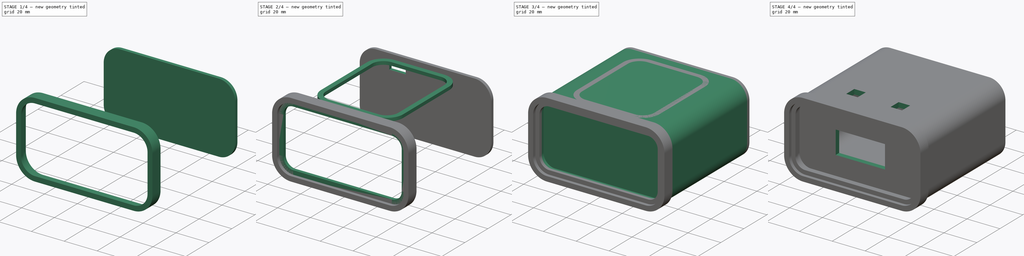
[diagram: build sequence overview — one tinted view per stage of 4, left to right]
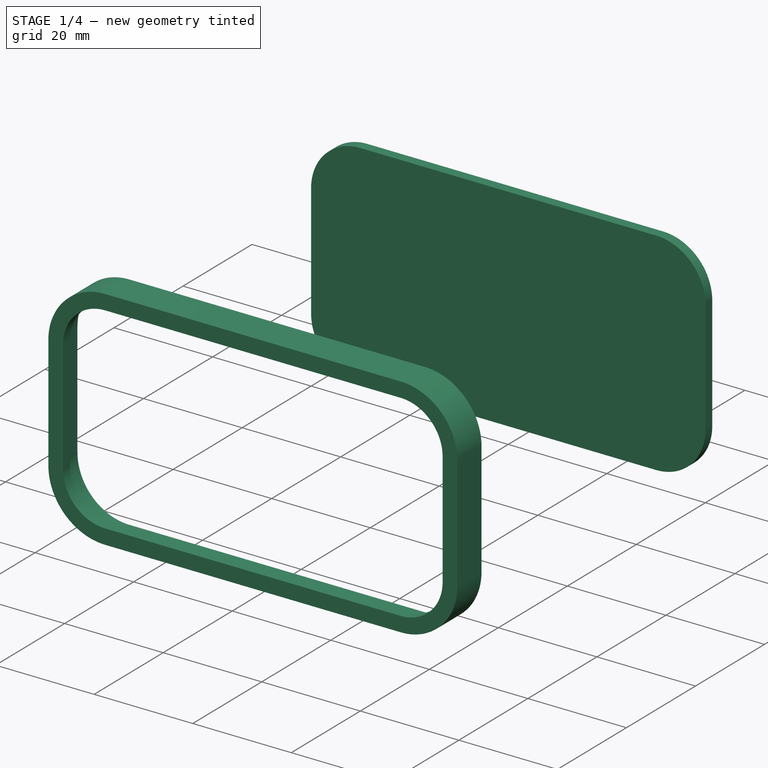
[diagram: stage 1 of 4 — iso view after this stage's code; geometry added in this stage tinted green]
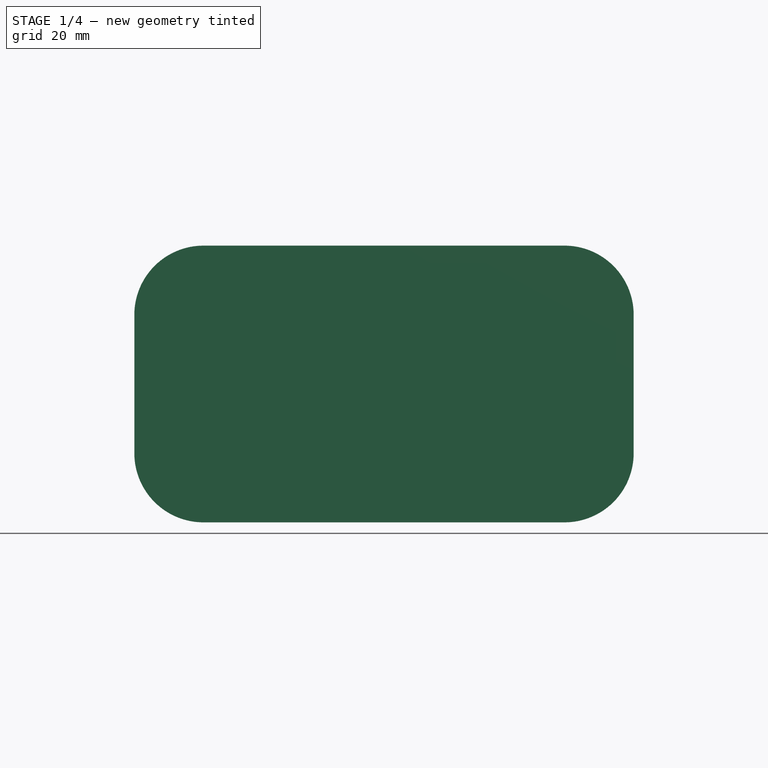
[diagram: stage 1 of 4 — front view after this stage's code; geometry added in this stage tinted green]
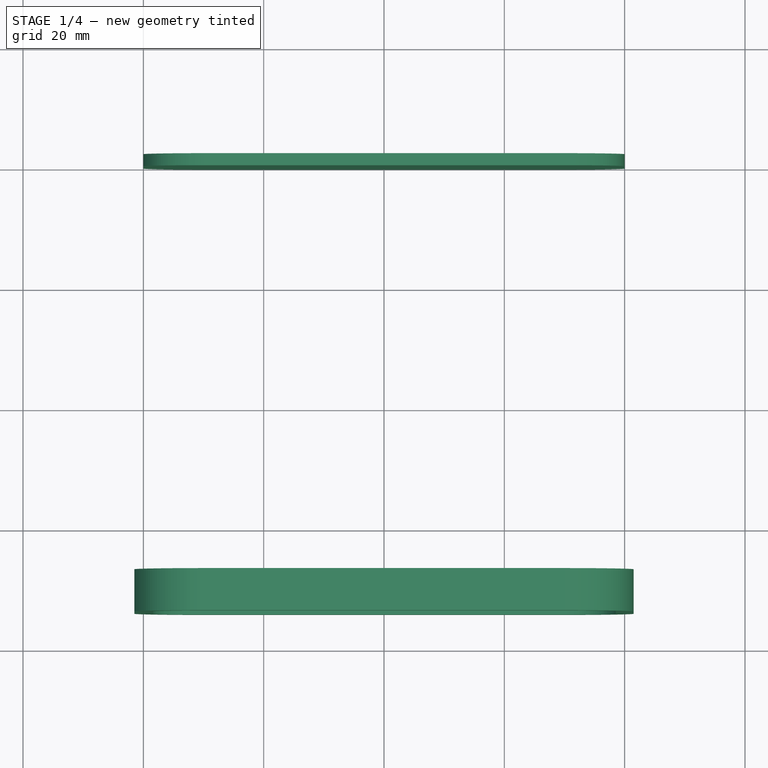
[diagram: stage 1 of 4 — top view after this stage's code; geometry added in this stage tinted green]
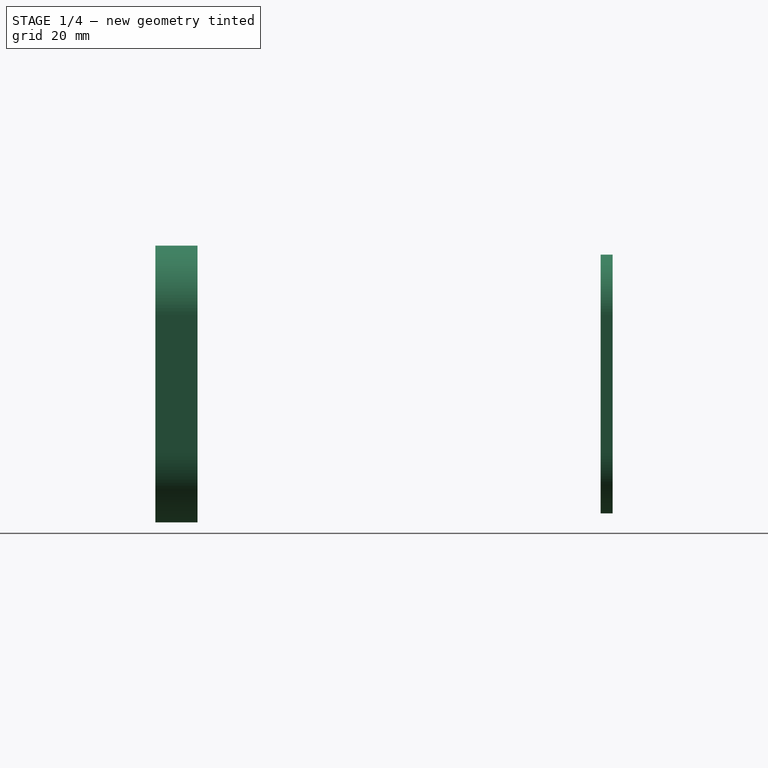
[diagram: stage 1 of 4 — right view after this stage's code; geometry added in this stage tinted green]
FCSTD DOCUMENT  (FreeCAD 0.19R24276 (Git))
Label: bsclock
License: All rights reserved
LicenseURL: http://en.wikipedia.org/wiki/All_rights_reserved
objects: Sketcher::SketchObject×12, PartDesign::Pad×6, PartDesign::Pocket×6, PartDesign::Body×5, PartDesign::ShapeBinder×4
note: 45 computed .brp shape members not serialized (recipe doc carries the construction recipe); baked Part::Feature solids carry a one-line shape summary decoded from their .brp

FEATURE [PartDesign::Body] Body003  label="TopRail"
  Group = -> [CopyPocket004001,Sketch007,Pad002]
  Origin = -> Origin003
  Tip = -> Pad002
FEATURE [PartDesign::ShapeBinder] CopyPocket004002
  Placement = pos=(0,0,0) rot=(1,0,0;1.5708rad)
  TraceSupport = false
FEATURE [Sketcher::SketchObject] Sketch008
  ExternalGeometry = -> [CopyPocket004002]
  FullyConstrained = true
  MapMode = 5
  Placement = pos=(0,0,0) rot=(-1,0,0;1.5708rad)
  Support = -> [CopyPocket004002]
  sketch-geometry (12):
    g0: LineSegment StartX=-30 StartY=21.5 StartZ=0 EndX=30 EndY=21.5 EndZ=0
    g1: LineSegment StartX=40 StartY=11.5 StartZ=0 EndX=40 EndY=-11.5 EndZ=0
    g2: LineSegment StartX=30 StartY=-21.5 StartZ=0 EndX=-30 EndY=-21.5 EndZ=0
    g3: LineSegment StartX=-40 StartY=-11.5 StartZ=0 EndX=-40 EndY=11.5 EndZ=0
    g4: ArcOfCircle CenterX=30 CenterY=11.5 CenterZ=0 NormalX=0 NormalY=0 NormalZ=1 AngleXU=0 Radius=10 StartAngle=0 EndAngle=1.5708
    g5: GeomPoint X=40 Y=21.5 Z=0
    g6: ArcOfCircle CenterX=30 CenterY=-11.5 CenterZ=0 NormalX=0 NormalY=0 NormalZ=1 AngleXU=0 Radius=10 StartAngle=4.71239 EndAngle=6.28319
    g7: GeomPoint X=40 Y=-21.5 Z=0
    g8: ArcOfCircle CenterX=-30 CenterY=-11.5 CenterZ=0 NormalX=0 NormalY=0 NormalZ=1 AngleXU=0 Radius=10 StartAngle=3.14159 EndAngle=4.71239
    g9: GeomPoint X=-40 Y=-21.5 Z=0
    g10: ArcOfCircle CenterX=-30 CenterY=11.5 CenterZ=0 NormalX=0 NormalY=0 NormalZ=1 AngleXU=0 Radius=10 StartAngle=1.5708 EndAngle=3.14159
    g11: GeomPoint X=-40 Y=21.5 Z=0
  constraints (28):
    c: Horizontal(g0)
    c: Horizontal(g2)
    c: Vertical(g1)
    c: Vertical(g3)
    c: DistanceY(g-3,g5) = 0
    c: DistanceY(g7,g-4) = 0
    c: DistanceX(g11,g-6) = 0
    c: DistanceX(g-5,g5) = 0
    c: PointOnObject(g5,g0)
    c: PointOnObject(g5,g1)
    c: Tangent(g0,g4) = 1.5708
    c: Tangent(g1,g4) = 1.5708
    c: PointOnObject(g7,g2)
    c: PointOnObject(g7,g1)
    c: Tangent(g2,g6) = 1.5708
    c: Tangent(g1,g6) = 1.5708
    c: PointOnObject(g9,g2)
    c: PointOnObject(g9,g3)
    c: Tangent(g2,g8) = 1.5708
    c: Tangent(g3,g8) = 1.5708
    c: PointOnObject(g11,g3)
    c: PointOnObject(g11,g0)
    c: Tangent(g3,g10) = 1.5708
    c: Tangent(g0,g10) = 1.5708
    c: DistanceX(g3,g10) = 10
    c: DistanceX(g4,g1) = 10
    c: DistanceX(g6,g1) = 10
    c: DistanceX(g3,g8) = 10
FEATURE [PartDesign::Pad] Pad003
  Direction = (1,1,1)
  Length = 2
  Length2 = 100
  Placement = pos=(0,0,0) rot=(1,0,0;1.5708rad)
  Profile = -> Sketch008
  Type = 0
FEATURE [PartDesign::Body] Body004  label="BackPlate"
  Group = -> [CopyPocket004002,Sketch008,Pad003,Sketch011,Pocket005]
  Origin = -> Origin004
  Tip = -> Pocket005
FEATURE [PartDesign::ShapeBinder] CopyPad005
  Placement = pos=(0,-2,1.1e-15) rot=(0,0,1;0rad)
  TraceSupport = false
FEATURE [Sketcher::SketchObject] Sketch012
  ExternalGeometry = -> [CopyPad005]
  FullyConstrained = true
  MapMode = 5
  Placement = pos=(0,-72,5.22e-14) rot=(1,0,0;1.5708rad)
  Support = -> [CopyPad005]
  sketch-geometry (24):
    g0: LineSegment StartX=-30 StartY=22 StartZ=0 EndX=30 EndY=22 EndZ=0
    g1: LineSegment StartX=40.5 StartY=11.5 StartZ=0 EndX=40.5 EndY=-11.5 EndZ=0
    g2: LineSegment StartX=30 StartY=-22 StartZ=0 EndX=-30 EndY=-22 EndZ=0
    g3: LineSegment StartX=-40.5 StartY=-11.5 StartZ=0 EndX=-40.5 EndY=11.5 EndZ=0
    g4: ArcOfCircle CenterX=30 CenterY=11.5 CenterZ=0 NormalX=0 NormalY=0 NormalZ=1 AngleXU=0 Radius=10.5 StartAngle=0 EndAngle=1.5708
    g5: GeomPoint X=40.5 Y=22 Z=0
    g6: ArcOfCircle CenterX=30 CenterY=-11.5 CenterZ=0 NormalX=0 NormalY=0 NormalZ=1 AngleXU=0 Radius=10.5 StartAngle=4.71239 EndAngle=6.28319
    g7: GeomPoint X=40.5 Y=-22 Z=0
    g8: ArcOfCircle CenterX=-30 CenterY=-11.5 CenterZ=0 NormalX=0 NormalY=0 NormalZ=1 AngleXU=0 Radius=10.5 StartAngle=3.14159 EndAngle=4.71239
    g9: GeomPoint X=-40.5 Y=-22 Z=0
    g10: ArcOfCircle CenterX=-30 CenterY=11.5 CenterZ=0 NormalX=0 NormalY=0 NormalZ=1 AngleXU=0 Radius=10.5 StartAngle=1.5708 EndAngle=3.14159
    g11: GeomPoint X=-40.5 Y=22 Z=0
    g12: LineSegment StartX=-30 StartY=23 StartZ=0 EndX=30 EndY=23 EndZ=0
    g13: LineSegment StartX=41.5 StartY=11.5 StartZ=0 EndX=41.5 EndY=-11.5 EndZ=0
    g14: LineSegment StartX=30 StartY=-23 StartZ=0 EndX=-30 EndY=-23 EndZ=0
    g15: LineSegment StartX=-41.5 StartY=-11.5 StartZ=0 EndX=-41.5 EndY=11.5 EndZ=0
    g16: ArcOfCircle CenterX=30 CenterY=11.5 CenterZ=0 NormalX=0 NormalY=0 NormalZ=1 AngleXU=0 Radius=11.5 StartAngle=0 EndAngle=1.5708
    g17: GeomPoint X=41.5 Y=23 Z=0
    g18: ArcOfCircle CenterX=-30 CenterY=11.5 CenterZ=0 NormalX=0 NormalY=0 NormalZ=1 AngleXU=0 Radius=11.5 StartAngle=1.5708 EndAngle=3.14159
    g19: GeomPoint X=-41.5 Y=23 Z=0
    g20: ArcOfCircle CenterX=-30 CenterY=-11.5 CenterZ=0 NormalX=0 NormalY=0 NormalZ=1 AngleXU=0 Radius=11.5 StartAngle=3.14159 EndAngle=4.71239
    g21: GeomPoint X=-41.5 Y=-23 Z=0
    g22: ArcOfCircle CenterX=30 CenterY=-11.5 CenterZ=0 NormalX=0 NormalY=0 NormalZ=1 AngleXU=0 Radius=11.5 StartAngle=4.71239 EndAngle=6.28319
    g23: GeomPoint X=41.5 Y=-23 Z=0
  constraints (56):
    c: Horizontal(g0)
    c: Horizontal(g2)
    c: Vertical(g1)
    c: Vertical(g3)
    c: DistanceX(g-5,g5) = 0.5
    c: DistanceX(g11,g-6) = 0.5
    c: DistanceY(g9,g-4) = 0.5
    c: DistanceY(g-3,g5) = 0.5
    c: PointOnObject(g5,g1)
    c: PointOnObject(g5,g0)
    c: Tangent(g1,g4) = 1.5708
    c: Tangent(g0,g4) = 1.5708
    c: PointOnObject(g7,g1)
    c: PointOnObject(g7,g2)
    c: Tangent(g1,g6) = 1.5708
    c: Tangent(g2,g6) = 1.5708
    c: PointOnObject(g9,g2)
    c: PointOnObject(g9,g3)
    c: Tangent(g2,g8) = 1.5708
    c: Tangent(g3,g8) = 1.5708
    c: PointOnObject(g11,g3)
    c: PointOnObject(g11,g0)
    c: Tangent(g3,g10) = 1.5708
    c: Tangent(g0,g10) = 1.5708
    c: DistanceX(g3,g10) = 10.5
    c: DistanceX(g4,g1) = 10.5
    c: DistanceX(g6,g1) = 10.5
    c: DistanceX(g3,g8) = 10.5
    c: Horizontal(g12)
    c: Horizontal(g14)
    c: Vertical(g13)
    c: Vertical(g15)
    c: DistanceX(g1,g17) = 1
    c: DistanceY(g23,g2) = 1
    c: DistanceX(g21,g3) = 1
    c: DistanceY(g0,g19) = 1
    c: PointOnObject(g17,g12)
    c: PointOnObject(g17,g13)
    c: Tangent(g12,g16) = 1.5708
    c: Tangent(g13,g16) = 1.5708
    c: PointOnObject(g19,g15)
    c: PointOnObject(g19,g12)
    c: Tangent(g15,g18) = 1.5708
    c: Tangent(g12,g18) = 1.5708
    c: PointOnObject(g21,g14)
    c: PointOnObject(g21,g15)
    c: Tangent(g14,g20) = 1.5708
    c: Tangent(g15,g20) = 1.5708
    c: PointOnObject(g23,g14)
    c: PointOnObject(g23,g13)
    c: Tangent(g14,g22) = 1.5708
    c: Tangent(g13,g22) = 1.5708
    c: DistanceX(g22,g13) = 11.5
    c: DistanceX(g16,g13) = 11.5
    c: DistanceX(g15,g18) = 11.5
    c: DistanceX(g15,g20) = 11.5
FEATURE [PartDesign::Pad] Pad006  label="Rim"
  Direction = (1,1,1)
  Length = 5
  Length2 = 100
  Placement = pos=(0,-2,1.1e-15) rot=(0,0,1;0rad)
  Profile = -> Sketch012
  Reversed = true
  Type = 0
FEATURE [Sketcher::SketchObject] Sketch013
  ExternalGeometry = -> [Pad006]
  FullyConstrained = true
  MapMode = 5
  Placement = pos=(0,-72,5.7e-14) rot=(1,0,0;1.5708rad)
  Support = -> [Pad006]
  sketch-geometry (24):
    g0: LineSegment StartX=-30 StartY=23 StartZ=0 EndX=30 EndY=23 EndZ=0
    g1: LineSegment StartX=41.5 StartY=11.5 StartZ=0 EndX=41.5 EndY=-11.5 EndZ=0
    g2: LineSegment StartX=30 StartY=-23 StartZ=0 EndX=-30 EndY=-23 EndZ=0
    g3: LineSegment StartX=-41.5 StartY=-11.5 StartZ=0 EndX=-41.5 EndY=11.5 EndZ=0
    g4: ArcOfCircle CenterX=30 CenterY=-11.5 CenterZ=0 NormalX=0 NormalY=0 NormalZ=1 AngleXU=0 Radius=11.5 StartAngle=4.71239 EndAngle=6.28319
    g5: GeomPoint X=41.5 Y=-23 Z=0
    g6: ArcOfCircle CenterX=30 CenterY=11.5 CenterZ=0 NormalX=0 NormalY=0 NormalZ=1 AngleXU=0 Radius=11.5 StartAngle=0 EndAngle=1.5708
    g7: GeomPoint X=41.5 Y=23 Z=0
    g8: ArcOfCircle CenterX=-30 CenterY=11.5 CenterZ=0 NormalX=0 NormalY=0 NormalZ=1 AngleXU=0 Radius=11.5 StartAngle=1.5708 EndAngle=3.14159
    g9: GeomPoint X=-41.5 Y=23 Z=0
    g10: ArcOfCircle CenterX=-30 CenterY=-11.5 CenterZ=0 NormalX=0 NormalY=0 NormalZ=1 AngleXU=0 Radius=11.5 StartAngle=3.14159 EndAngle=4.71239
    g11: GeomPoint X=-41.5 Y=-23 Z=0
    g12: LineSegment StartX=-30 StartY=20 StartZ=0 EndX=30 EndY=20 EndZ=0
    g13: LineSegment StartX=38.5 StartY=11.5 StartZ=0 EndX=38.5 EndY=-11.5 EndZ=0
    g14: LineSegment StartX=30 StartY=-20 StartZ=0 EndX=-30 EndY=-20 EndZ=0
    g15: LineSegment StartX=-38.5 StartY=-11.5 StartZ=0 EndX=-38.5 EndY=11.5 EndZ=0
    g16: ArcOfCircle CenterX=30 CenterY=11.5 CenterZ=0 NormalX=0 NormalY=0 NormalZ=1 AngleXU=0 Radius=8.5 StartAngle=0 EndAngle=1.5708
    g17: GeomPoint X=38.5 Y=20 Z=0
    g18: ArcOfCircle CenterX=-30 CenterY=11.5 CenterZ=0 NormalX=0 NormalY=0 NormalZ=1 AngleXU=0 Radius=8.5 StartAngle=1.5708 EndAngle=3.14159
    g19: GeomPoint X=-38.5 Y=20 Z=0
    g20: ArcOfCircle CenterX=-30 CenterY=-11.5 CenterZ=0 NormalX=0 NormalY=0 NormalZ=1 AngleXU=0 Radius=8.5 StartAngle=3.14159 EndAngle=4.71239
    g21: GeomPoint X=-38.5 Y=-20 Z=0
    g22: ArcOfCircle CenterX=30 CenterY=-11.5 CenterZ=0 NormalX=0 NormalY=0 NormalZ=1 AngleXU=0 Radius=8.5 StartAngle=4.71239 EndAngle=6.28319
    g23: GeomPoint X=38.5 Y=-20 Z=0
  constraints (52):
    c: Vertical(g1)
    c: PointOnObject(g5,g2)
    c: PointOnObject(g5,g1)
    c: Tangent(g2,g4) = 1.5708
    c: Tangent(g1,g4) = 1.5708
    c: PointOnObject(g7,g1)
    c: PointOnObject(g7,g0)
    c: Tangent(g1,g6) = 1.5708
    c: Tangent(g0,g6) = 1.5708
    c: PointOnObject(g9,g0)
    c: PointOnObject(g9,g3)
    c: Tangent(g0,g8) = 1.5708
    c: Tangent(g3,g8) = 1.5708
    c: PointOnObject(g11,g2)
    c: PointOnObject(g11,g3)
    c: Tangent(g2,g10) = 1.5708
    c: Tangent(g3,g10) = 1.5708
    c: Coincident(g0,g-7)
    c: Coincident(g3,g-7)
    c: Coincident(g3,g-8)
    c: Coincident(g-8,g2)
    c: Coincident(g2,g-9)
    c: Coincident(g1,g-9)
    c: Coincident(g1,g-10)
    c: Horizontal(g12)
    c: Horizontal(g14)
    c: Vertical(g13)
    c: Vertical(g15)
    c: DistanceX(g17,g1) = 3
    c: DistanceX(g3,g21) = 3
    c: DistanceY(g19,g0) = 3
    c: DistanceY(g2,g23) = 3
    c: PointOnObject(g17,g13)
    c: PointOnObject(g17,g12)
    c: Tangent(g13,g16) = 1.5708
    c: Tangent(g12,g16) = 1.5708
    c: PointOnObject(g19,g12)
    c: PointOnObject(g19,g15)
    c: Tangent(g12,g18) = 1.5708
    c: Tangent(g15,g18) = 1.5708
    c: PointOnObject(g21,g14)
    c: PointOnObject(g21,g15)
    c: Tangent(g14,g20) = 1.5708
    c: Tangent(g15,g20) = 1.5708
    c: PointOnObject(g23,g14)
    c: PointOnObject(g23,g13)
    c: Tangent(g14,g22) = 1.5708
    c: Tangent(g13,g22) = 1.5708
    c: DistanceX(g22,g13) = 8.5
    c: DistanceX(g15,g20) = 8.5
    c: DistanceX(g15,g18) = 8.5
    c: DistanceX(g16,g13) = 8.5
FEATURE [PartDesign::Pad] Pad007  label="FrontBorder"
  BaseFeature = -> Pad006
  Direction = (1,1,1)
  Length = 2
  Length2 = 100
  Placement = pos=(0,-2,1.1e-15) rot=(0,0,1;0rad)
  Profile = -> Sketch013
  Type = 0
FEATURE [PartDesign::Body] Body006  label="Endcap"
  Group = -> [CopyPad005,Sketch012,Pad006,Sketch013,Pad007]
  Origin = -> Origin006
  Tip = -> Pad007
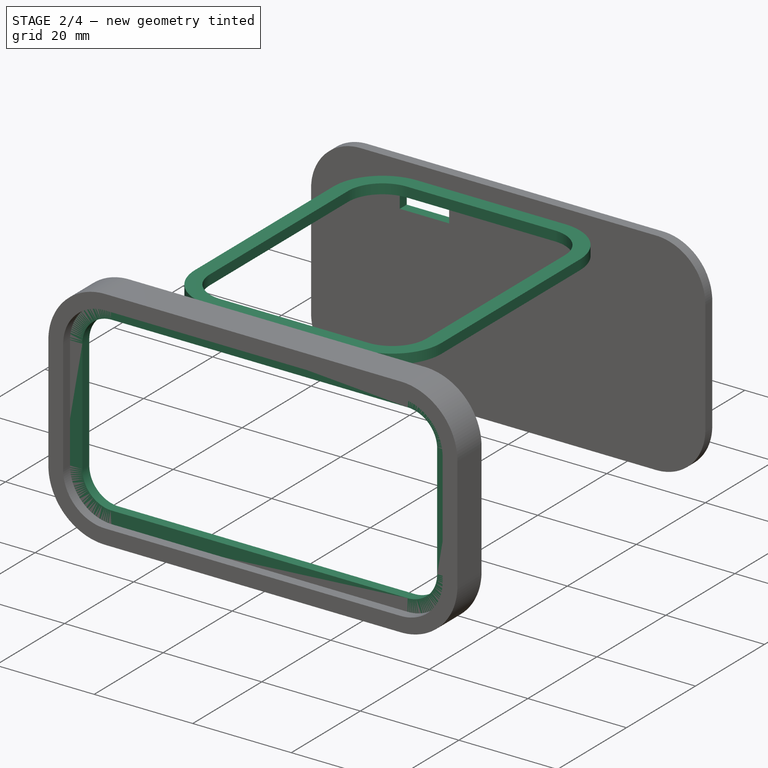
[diagram: stage 2 of 4 — iso view after this stage's code; geometry added in this stage tinted green]
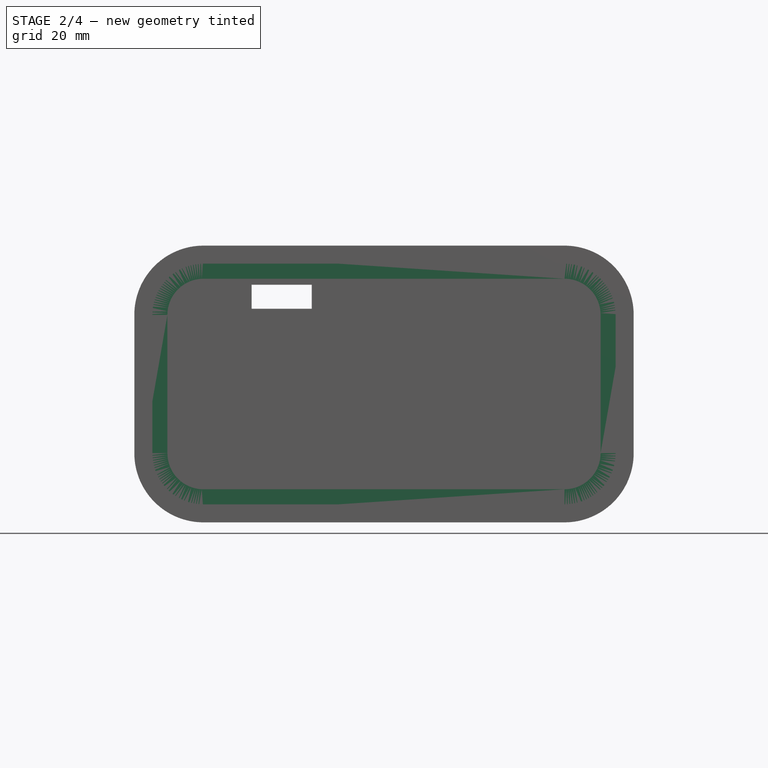
[diagram: stage 2 of 4 — front view after this stage's code; geometry added in this stage tinted green]
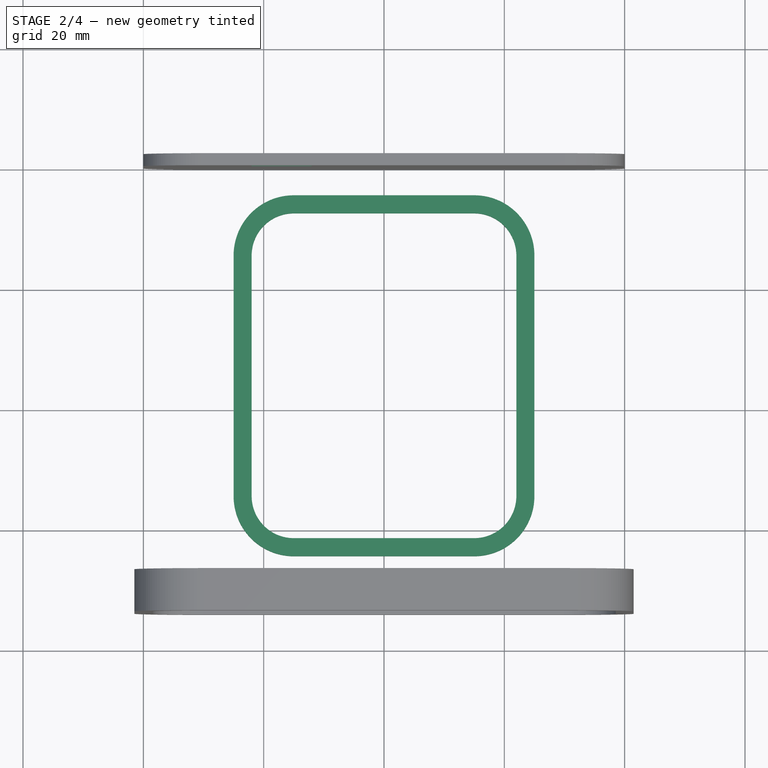
[diagram: stage 2 of 4 — top view after this stage's code; geometry added in this stage tinted green]
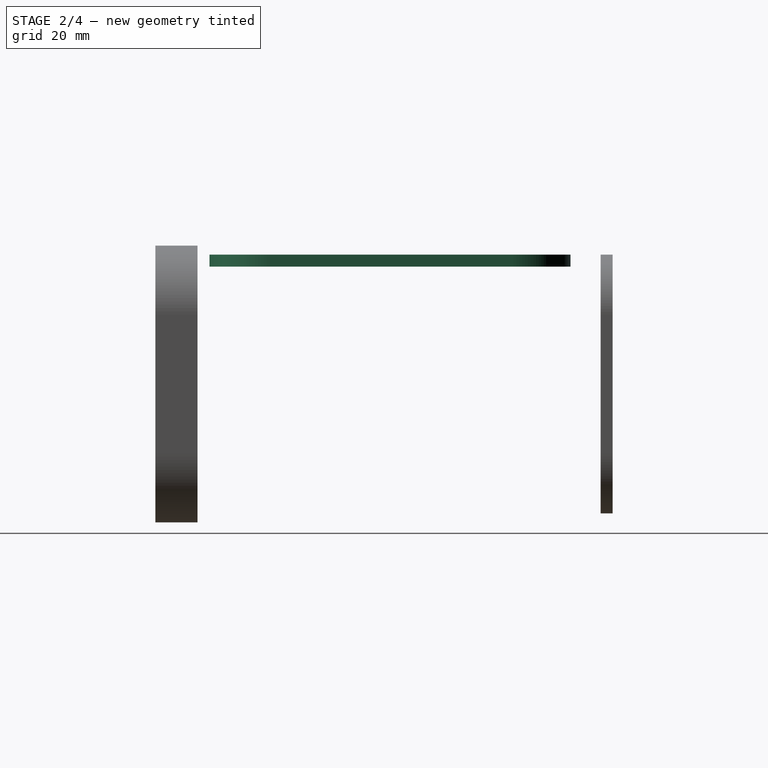
[diagram: stage 2 of 4 — right view after this stage's code; geometry added in this stage tinted green]
FEATURE [PartDesign::Body] Body
  Group = -> [Sketch,Pad,Sketch001,Pocket,Sketch002,Pocket001,Sketch003,Pocket002,Sketch004,Pocket003,Sketch005,Pocket004]
  Origin = -> Origin
  Tip = -> Pocket004
FEATURE [PartDesign::ShapeBinder] CopyPocket004001
  Placement = pos=(0,0,0) rot=(1,0,0;1.5708rad)
  TraceSupport = false
FEATURE [Sketcher::SketchObject] Sketch007
  ExternalGeometry = -> [CopyPocket004001]
  FullyConstrained = true
  MapMode = 5
  Placement = pos=(0,1.42e-14,21.5) rot=(0,0,1;3.14159rad)
  Support = -> [CopyPocket004001]
  sketch-geometry (24):
    g0: LineSegment StartX=-15 StartY=62 StartZ=0 EndX=15 EndY=62 EndZ=0
    g1: LineSegment StartX=22 StartY=55 StartZ=0 EndX=22 EndY=15 EndZ=0
    g2: LineSegment StartX=15 StartY=8 StartZ=0 EndX=-15 EndY=8 EndZ=0
    g3: LineSegment StartX=-22 StartY=15 StartZ=0 EndX=-22 EndY=55 EndZ=0
    g4: LineSegment StartX=-15 StartY=65 StartZ=0 EndX=15 EndY=65 EndZ=0
    g5: LineSegment StartX=25 StartY=55 StartZ=0 EndX=25 EndY=15 EndZ=0
    g6: LineSegment StartX=15 StartY=5 StartZ=0 EndX=-15 EndY=5 EndZ=0
    g7: LineSegment StartX=-25 StartY=15 StartZ=0 EndX=-25 EndY=55 EndZ=0
    g8: ArcOfCircle CenterX=15 CenterY=55 CenterZ=0 NormalX=0 NormalY=0 NormalZ=1 AngleXU=0 Radius=10 StartAngle=1e-16 EndAngle=1.5708
    g9: GeomPoint X=25 Y=65 Z=0
    g10: ArcOfCircle CenterX=15 CenterY=15 CenterZ=0 NormalX=0 NormalY=0 NormalZ=1 AngleXU=0 Radius=10 StartAngle=4.71239 EndAngle=6.28319
    g11: GeomPoint X=25 Y=5 Z=0
    g12: ArcOfCircle CenterX=15 CenterY=15 CenterZ=0 NormalX=0 NormalY=0 NormalZ=1 AngleXU=0 Radius=7 StartAngle=4.71239 EndAngle=6.28319
    g13: GeomPoint X=22 Y=8 Z=0
    g14: ArcOfCircle CenterX=-15 CenterY=15 CenterZ=0 NormalX=0 NormalY=0 NormalZ=1 AngleXU=0 Radius=7 StartAngle=3.14159 EndAngle=4.71239
    g15: GeomPoint X=-22 Y=8 Z=0
    g16: ArcOfCircle CenterX=-15 CenterY=15 CenterZ=0 NormalX=0 NormalY=0 NormalZ=1 AngleXU=0 Radius=10 StartAngle=3.14159 EndAngle=4.71239
    g17: GeomPoint X=-25 Y=5 Z=0
    g18: ArcOfCircle CenterX=-15 CenterY=55 CenterZ=0 NormalX=0 NormalY=0 NormalZ=1 AngleXU=0 Radius=7 StartAngle=1.5708 EndAngle=3.14159
    g19: GeomPoint X=-22 Y=62 Z=0
    g20: ArcOfCircle CenterX=-15 CenterY=55 CenterZ=0 NormalX=0 NormalY=0 NormalZ=1 AngleXU=0 Radius=10 StartAngle=1.5708 EndAngle=3.14159
    g21: GeomPoint X=-25 Y=65 Z=0
    g22: ArcOfCircle CenterX=15 CenterY=55 CenterZ=0 NormalX=0 NormalY=0 NormalZ=1 AngleXU=0 Radius=7 StartAngle=-9e-16 EndAngle=1.5708
    g23: GeomPoint X=22 Y=62 Z=0
  constraints (56):
    c: Horizontal(g0)
    c: Horizontal(g2)
    c: Vertical(g1)
    c: Vertical(g3)
    c: DistanceY(g13,g-6) = 0
    c: DistanceY(g-5,g23) = 0
    c: DistanceX(g-4,g23) = 0
    c: DistanceX(g19,g-3) = 0
    c: Horizontal(g4)
    c: Horizontal(g6)
    c: Vertical(g5)
    c: Vertical(g7)
    c: DistanceX(g13,g11) = 3
    c: DistanceX(g17,g15) = 3
    c: DistanceY(g19,g21) = 3
    c: DistanceY(g17,g15) = 3
    c: PointOnObject(g9,g4)
    c: PointOnObject(g9,g5)
    c: Tangent(g4,g8) = 1.5708
    c: Tangent(g5,g8) = 1.5708
    c: PointOnObject(g11,g6)
    c: PointOnObject(g11,g5)
    c: Tangent(g6,g10) = 1.5708
    c: Tangent(g5,g10) = 1.5708
    c: PointOnObject(g13,g1)
    c: PointOnObject(g13,g2)
    c: Tangent(g1,g12) = 1.5708
    c: Tangent(g2,g12) = 1.5708
    c: PointOnObject(g15,g2)
    c: PointOnObject(g15,g3)
    c: Tangent(g2,g14) = 1.5708
    c: Tangent(g3,g14) = 1.5708
    c: PointOnObject(g17,g6)
    c: PointOnObject(g17,g7)
    c: Tangent(g6,g16) = 1.5708
    c: Tangent(g7,g16) = 1.5708
    c: PointOnObject(g19,g3)
    c: PointOnObject(g19,g0)
    c: Tangent(g3,g18) = 1.5708
    c: Tangent(g0,g18) = 1.5708
    c: PointOnObject(g21,g7)
    c: PointOnObject(g21,g4)
    c: Tangent(g7,g20) = 1.5708
    c: Tangent(g4,g20) = 1.5708
    c: PointOnObject(g23,g0)
    c: PointOnObject(g23,g1)
    c: Tangent(g0,g22) = 1.5708
    c: Tangent(g1,g22) = 1.5708
    c: DistanceX(g22,g1) = 7
    c: DistanceX(g8,g5) = 10
    c: DistanceX(g3,g18) = 7
    c: DistanceX(g7,g20) = 10
    c: DistanceX(g12,g1) = 7
    c: DistanceX(g10,g5) = 10
    c: DistanceX(g3,g14) = 7
    c: DistanceX(g7,g16) = 10
FEATURE [PartDesign::Pad] Pad002
  Direction = (1,1,1)
  Length = 2
  Length2 = 100
  Placement = pos=(0,0,0) rot=(1,0,0;1.5708rad)
  Profile = -> Sketch007
  Reversed = true
  Type = 0
FEATURE [PartDesign::ShapeBinder] CopyPocket004003
  Placement = pos=(0,0,0) rot=(1,0,0;1.5708rad)
  TraceSupport = false
FEATURE [Sketcher::SketchObject] Sketch010
  ExternalGeometry = -> [CopyPocket004003]
  FullyConstrained = true
  MapMode = 5
  Placement = pos=(0,-70,3.09e-14) rot=(1,0,0;1.5708rad)
  Support = -> [CopyPocket004003]
  sketch-geometry (24):
    g0: LineSegment StartX=-30 StartY=21.5 StartZ=0 EndX=30 EndY=21.5 EndZ=0
    g1: LineSegment StartX=40 StartY=11.5 StartZ=0 EndX=40 EndY=-11.5 EndZ=0
    g2: LineSegment StartX=30 StartY=-21.5 StartZ=0 EndX=-30 EndY=-21.5 EndZ=0
    g3: LineSegment StartX=-40 StartY=-11.5 StartZ=0 EndX=-40 EndY=11.5 EndZ=0
    g4: ArcOfCircle CenterX=30 CenterY=11.5 CenterZ=0 NormalX=0 NormalY=0 NormalZ=1 AngleXU=0 Radius=10 StartAngle=0 EndAngle=1.5708
    g5: GeomPoint X=40 Y=21.5 Z=0
    g6: ArcOfCircle CenterX=30 CenterY=-11.5 CenterZ=0 NormalX=0 NormalY=0 NormalZ=1 AngleXU=0 Radius=10 StartAngle=4.71239 EndAngle=6.28319
    g7: GeomPoint X=40 Y=-21.5 Z=0
    g8: ArcOfCircle CenterX=-30 CenterY=-11.5 CenterZ=0 NormalX=0 NormalY=0 NormalZ=1 AngleXU=0 Radius=10 StartAngle=3.14159 EndAngle=4.71239
    g9: GeomPoint X=-40 Y=-21.5 Z=0
    g10: ArcOfCircle CenterX=-30 CenterY=11.5 CenterZ=0 NormalX=0 NormalY=0 NormalZ=1 AngleXU=0 Radius=10 StartAngle=1.5708 EndAngle=3.14159
    g11: GeomPoint X=-40 Y=21.5 Z=0
    g12: LineSegment StartX=-30 StartY=17.5 StartZ=0 EndX=30 EndY=17.5 EndZ=0
    g13: LineSegment StartX=36 StartY=11.5 StartZ=0 EndX=36 EndY=-11.5 EndZ=0
    g14: LineSegment StartX=30 StartY=-17.5 StartZ=0 EndX=-30 EndY=-17.5 EndZ=0
    g15: LineSegment StartX=-36 StartY=-11.5 StartZ=0 EndX=-36 EndY=11.5 EndZ=0
    g16: ArcOfCircle CenterX=30 CenterY=-11.5 CenterZ=0 NormalX=0 NormalY=0 NormalZ=1 AngleXU=0 Radius=6 StartAngle=4.71239 EndAngle=6.28319
    g17: GeomPoint X=36 Y=-17.5 Z=0
    g18: ArcOfCircle CenterX=-30 CenterY=-11.5 CenterZ=0 NormalX=0 NormalY=0 NormalZ=1 AngleXU=0 Radius=6 StartAngle=3.14159 EndAngle=4.71239
    g19: GeomPoint X=-36 Y=-17.5 Z=0
    g20: ArcOfCircle CenterX=-30 CenterY=11.5 CenterZ=0 NormalX=0 NormalY=0 NormalZ=1 AngleXU=0 Radius=6 StartAngle=1.5708 EndAngle=3.14159
    g21: GeomPoint X=-36 Y=17.5 Z=0
    g22: ArcOfCircle CenterX=30 CenterY=11.5 CenterZ=0 NormalX=0 NormalY=0 NormalZ=1 AngleXU=0 Radius=6 StartAngle=0 EndAngle=1.5708
    g23: GeomPoint X=36 Y=17.5 Z=0
  constraints (55):
    c: Horizontal(g0)
    c: Horizontal(g2)
    c: Vertical(g1)
    c: Vertical(g3)
    c: DistanceX(g-6,g5) = 0
    c: DistanceY(g-3,g11) = 0
    c: DistanceY(g9,g-4) = 0
    c: PointOnObject(g5,g0)
    c: PointOnObject(g5,g1)
    c: Tangent(g0,g4) = 1.5708
    c: Tangent(g1,g4) = 1.5708
    c: PointOnObject(g7,g2)
    c: PointOnObject(g7,g1)
    c: Tangent(g2,g6) = 1.5708
    c: Tangent(g1,g6) = 1.5708
    c: PointOnObject(g9,g2)
    c: PointOnObject(g9,g3)
    c: Tangent(g2,g8) = 1.5708
    c: Tangent(g3,g8) = 1.5708
    c: PointOnObject(g11,g3)
    c: PointOnObject(g11,g0)
    c: Tangent(g3,g10) = 1.5708
    c: Tangent(g0,g10) = 1.5708
    c: DistanceX(g4,g1) = 10
    c: DistanceX(g6,g1) = 10
    c: DistanceX(g3,g8) = 10
    c: Coincident(g3,g-5)
    c: Horizontal(g12)
    c: Horizontal(g14)
    c: Vertical(g13)
    c: Vertical(g15)
    c: DistanceX(g23,g1) = 4
    c: DistanceX(g3,g21) = 4
    c: DistanceY(g21,g0) = 4
    c: DistanceY(g2,g19) = 4
    c: PointOnObject(g17,g14)
    c: PointOnObject(g17,g13)
    c: Tangent(g14,g16) = 1.5708
    c: Tangent(g13,g16) = 1.5708
    c: PointOnObject(g19,g14)
    c: PointOnObject(g19,g15)
    c: Tangent(g14,g18) = 1.5708
    c: Tangent(g15,g18) = 1.5708
    c: PointOnObject(g21,g15)
    c: PointOnObject(g21,g12)
    c: Tangent(g15,g20) = 1.5708
    c: Tangent(g12,g20) = 1.5708
    c: PointOnObject(g23,g12)
    c: PointOnObject(g23,g13)
    c: Tangent(g12,g22) = 1.5708
    c: Tangent(g13,g22) = 1.5708
    c: DistanceX(g22,g13) = 6
    c: DistanceX(g15,g20) = 6
    c: DistanceX(g15,g18) = 6
    c: DistanceX(g16,g13) = 6
FEATURE [PartDesign::Pad] Pad005
  Direction = (1,1,1)
  Length = 2
  Length2 = 100
  Placement = pos=(0,0,0) rot=(1,0,0;1.5708rad)
  Profile = -> Sketch010
  Type = 0
FEATURE [PartDesign::Body] Body005  label="FrontRim"
  Group = -> [CopyPocket004003,Sketch010,Pad005]
  Origin = -> Origin005
  Tip = -> Pad005
FEATURE [Sketcher::SketchObject] Sketch011
  ExternalGeometry = -> [Pad003]
  FullyConstrained = true
  MapMode = 5
  Placement = pos=(0,2,-1.1e-15) rot=(-1,0,0;1.5708rad)
  Support = -> [Pad003]
  sketch-geometry (4):
    g0: LineSegment StartX=-12 StartY=-12.5 StartZ=0 EndX=-22 EndY=-12.5 EndZ=0
    g1: LineSegment StartX=-22 StartY=-12.5 StartZ=0 EndX=-22 EndY=-16.5 EndZ=0
    g2: LineSegment StartX=-22 StartY=-16.5 StartZ=0 EndX=-12 EndY=-16.5 EndZ=0
    g3: LineSegment StartX=-12 StartY=-16.5 StartZ=0 EndX=-12 EndY=-12.5 EndZ=0
  constraints (12):
    c: Coincident(g0,g1)
    c: Coincident(g1,g2)
    c: Coincident(g2,g3)
    c: Coincident(g3,g0)
    c: Horizontal(g0)
    c: Horizontal(g2)
    c: Vertical(g1)
    c: Vertical(g3)
    c: DistanceX(g-3,g0) = 18
    c: DistanceX(g0,g0) = 10
    c: DistanceY(g-4,g1) = 5
    c: DistanceY(g3,g3) = 4
FEATURE [PartDesign::Pocket] Pocket005
  BaseFeature = -> Pad003
  Length = 2
  Length2 = 100
  Placement = pos=(0,0,0) rot=(1,0,0;1.5708rad)
  Profile = -> Sketch011
  Type = 0
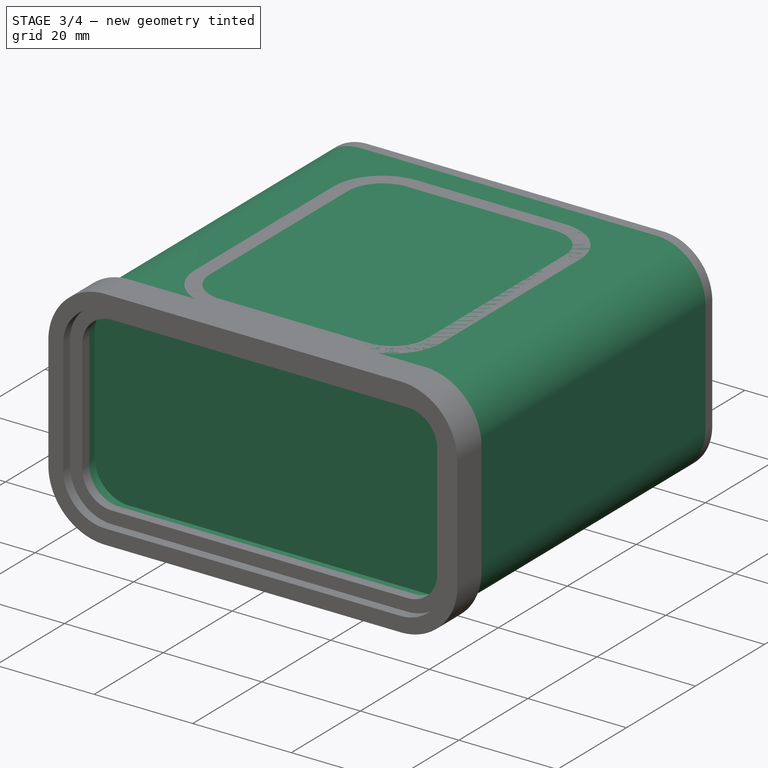
[diagram: stage 3 of 4 — iso view after this stage's code; geometry added in this stage tinted green]
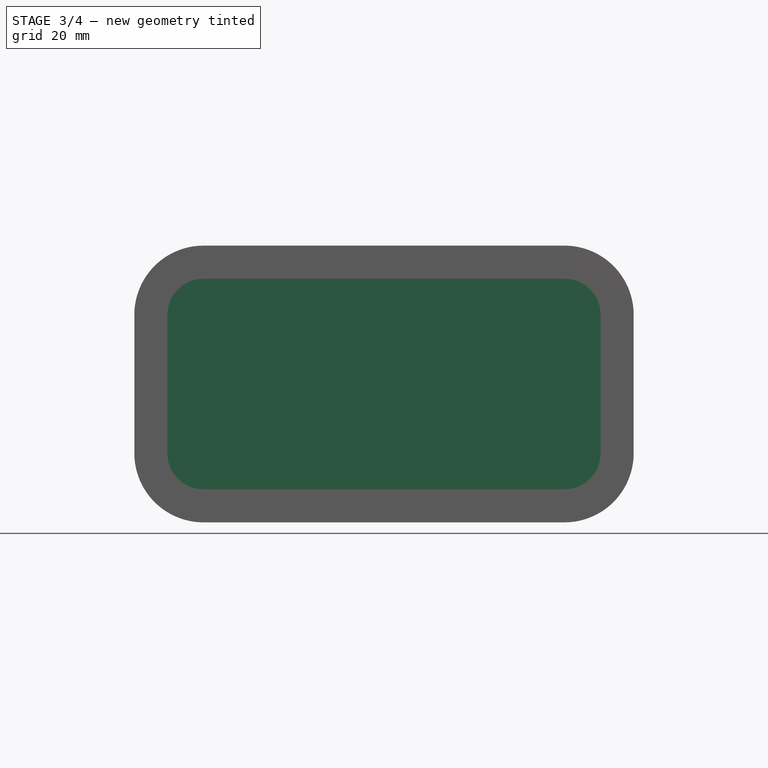
[diagram: stage 3 of 4 — front view after this stage's code; geometry added in this stage tinted green]
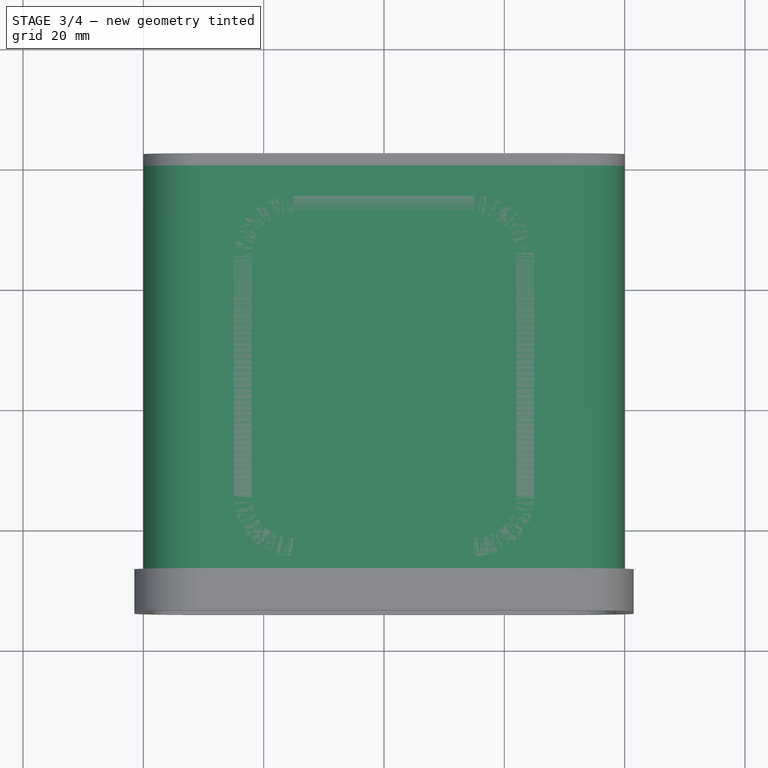
[diagram: stage 3 of 4 — top view after this stage's code; geometry added in this stage tinted green]
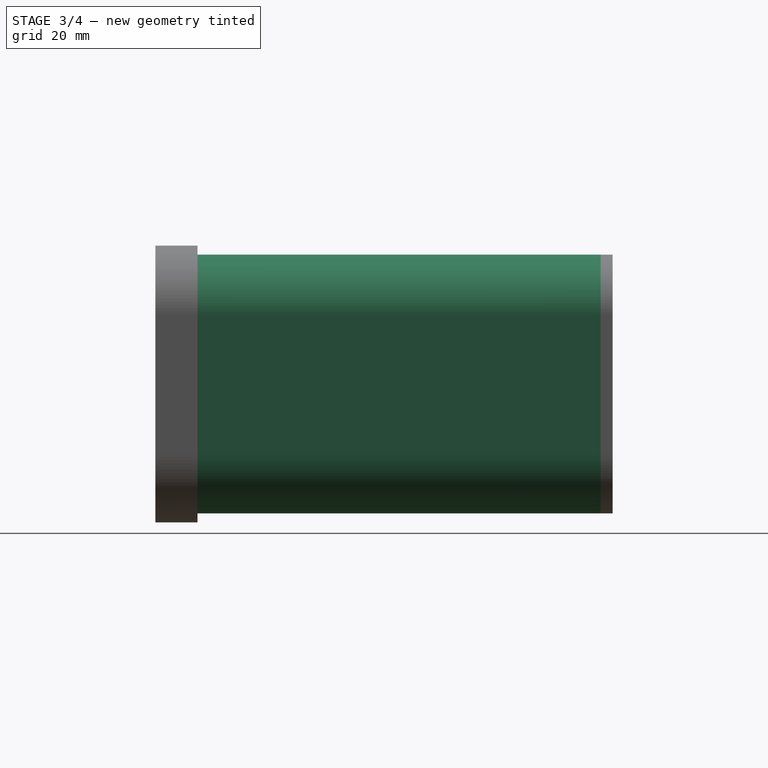
[diagram: stage 3 of 4 — right view after this stage's code; geometry added in this stage tinted green]
FEATURE [Sketcher::SketchObject] Sketch
  FullyConstrained = true
  MapMode = 5
  Placement = pos=(0,0,0) rot=(1,0,0;1.5708rad)
  Support = -> [XZ_Plane]
  sketch-geometry (12):
    g0: LineSegment StartX=-30 StartY=21.5 StartZ=0 EndX=30 EndY=21.5 EndZ=0
    g1: LineSegment StartX=40 StartY=11.5 StartZ=0 EndX=40 EndY=-11.5 EndZ=0
    g2: LineSegment StartX=30 StartY=-21.5 StartZ=0 EndX=-30 EndY=-21.5 EndZ=0
    g3: LineSegment StartX=-40 StartY=-11.5 StartZ=0 EndX=-40 EndY=11.5 EndZ=0
    g4: ArcOfCircle CenterX=30 CenterY=11.5 CenterZ=0 NormalX=0 NormalY=0 NormalZ=1 AngleXU=0 Radius=10 StartAngle=0 EndAngle=1.5708
    g5: GeomPoint X=40 Y=21.5 Z=0
    g6: ArcOfCircle CenterX=30 CenterY=-11.5 CenterZ=0 NormalX=0 NormalY=0 NormalZ=1 AngleXU=0 Radius=10 StartAngle=4.71239 EndAngle=6.28319
    g7: GeomPoint X=40 Y=-21.5 Z=0
    g8: ArcOfCircle CenterX=-30 CenterY=-11.5 CenterZ=0 NormalX=0 NormalY=0 NormalZ=1 AngleXU=0 Radius=10 StartAngle=3.14159 EndAngle=4.71239
    g9: GeomPoint X=-40 Y=-21.5 Z=0
    g10: ArcOfCircle CenterX=-30 CenterY=11.5 CenterZ=0 NormalX=0 NormalY=0 NormalZ=1 AngleXU=0 Radius=10 StartAngle=1.5708 EndAngle=3.14159
    g11: GeomPoint X=-40 Y=21.5 Z=0
  constraints (26):
    c: Horizontal(g2)
    c: Vertical(g3)
    c: Symmetric(g11,g5,g-2)
    c: Symmetric(g5,g7,g-1)
    c: DistanceX(g11,g5) = 80
    c: DistanceY(g7,g5) = 43
    c: PointOnObject(g5,g0)
    c: PointOnObject(g5,g1)
    c: Tangent(g0,g4) = 1.5708
    c: Tangent(g1,g4) = 1.5708
    c: PointOnObject(g7,g1)
    c: PointOnObject(g7,g2)
    c: Tangent(g1,g6) = 1.5708
    c: Tangent(g2,g6) = 1.5708
    c: PointOnObject(g9,g2)
    c: PointOnObject(g9,g3)
    c: Tangent(g2,g8) = 1.5708
    c: Tangent(g3,g8) = 1.5708
    c: PointOnObject(g11,g3)
    c: PointOnObject(g11,g0)
    c: Tangent(g3,g10) = 1.5708
    c: Tangent(g0,g10) = 1.5708
    c: DistanceX(g3,g10) = 10
    c: DistanceX(g4,g1) = 10
    c: DistanceX(g6,g1) = 10
    c: DistanceX(g3,g8) = 10
FEATURE [PartDesign::Pad] Pad  label="MainBody"
  Direction = (1,1,1)
  Length = 70
  Length2 = 100
  Placement = pos=(0,0,0) rot=(1,0,0;1.5708rad)
  Profile = -> Sketch
  Type = 0
FEATURE [Sketcher::SketchObject] Sketch001
  ExternalGeometry = -> [Pad]
  FullyConstrained = true
  MapMode = 5
  Placement = pos=(0,-70,3.09e-14) rot=(1,0,0;1.5708rad)
  Support = -> [Pad]
  sketch-geometry (12):
    g0: LineSegment StartX=-30 StartY=18.5 StartZ=0 EndX=30 EndY=18.5 EndZ=0
    g1: LineSegment StartX=37 StartY=11.5 StartZ=0 EndX=37 EndY=-11.5 EndZ=0
    g2: LineSegment StartX=30 StartY=-18.5 StartZ=0 EndX=-30 EndY=-18.5 EndZ=0
    g3: LineSegment StartX=-37 StartY=-11.5 StartZ=0 EndX=-37 EndY=11.5 EndZ=0
    g4: ArcOfCircle CenterX=30 CenterY=11.5 CenterZ=0 NormalX=0 NormalY=0 NormalZ=1 AngleXU=0 Radius=7 StartAngle=0 EndAngle=1.5708
    g5: GeomPoint X=37 Y=18.5 Z=0
    g6: ArcOfCircle CenterX=30 CenterY=-11.5 CenterZ=0 NormalX=0 NormalY=0 NormalZ=1 AngleXU=0 Radius=7 StartAngle=4.71239 EndAngle=6.28319
    g7: GeomPoint X=37 Y=-18.5 Z=0
    g8: ArcOfCircle CenterX=-30 CenterY=-11.5 CenterZ=0 NormalX=0 NormalY=0 NormalZ=1 AngleXU=0 Radius=7 StartAngle=3.14159 EndAngle=4.71239
    g9: GeomPoint X=-37 Y=-18.5 Z=0
    g10: ArcOfCircle CenterX=-30 CenterY=11.5 CenterZ=0 NormalX=0 NormalY=0 NormalZ=1 AngleXU=0 Radius=7 StartAngle=1.5708 EndAngle=3.14159
    g11: GeomPoint X=-37 Y=18.5 Z=0
  constraints (26):
    c: Horizontal(g2)
    c: Vertical(g3)
    c: Symmetric(g11,g5,g-2)
    c: Symmetric(g5,g7,g-1)
    c: DistanceX(g-5,g5) = -3
    c: DistanceY(g-3,g5) = -3
    c: PointOnObject(g5,g0)
    c: PointOnObject(g5,g1)
    c: Tangent(g0,g4) = 1.5708
    c: Tangent(g1,g4) = 1.5708
    c: PointOnObject(g7,g1)
    c: PointOnObject(g7,g2)
    c: Tangent(g1,g6) = 1.5708
    c: Tangent(g2,g6) = 1.5708
    c: PointOnObject(g9,g2)
    c: PointOnObject(g9,g3)
    c: Tangent(g2,g8) = 1.5708
    c: Tangent(g3,g8) = 1.5708
    c: PointOnObject(g11,g3)
    c: PointOnObject(g11,g0)
    c: Tangent(g3,g10) = 1.5708
    c: Tangent(g0,g10) = 1.5708
    c: DistanceX(g4,g1) = 7
    c: DistanceX(g3,g10) = 7
    c: DistanceX(g3,g8) = 7
    c: DistanceX(g6,g1) = 7
FEATURE [PartDesign::Pocket] Pocket  label="FrontRecess"
  BaseFeature = -> Pad
  Length = 3
  Length2 = 100
  Placement = pos=(0,0,0) rot=(1,0,0;1.5708rad)
  Profile = -> Sketch001
  Type = 0
FEATURE [Sketcher::SketchObject] Sketch002
  ExternalGeometry = -> [Pocket]
  FullyConstrained = true
  MapMode = 5
  Placement = pos=(0,0,0) rot=(-1,0,0;1.5708rad)
  Support = -> [Pocket]
  sketch-geometry (12):
    g0: LineSegment StartX=-30 StartY=18.5 StartZ=0 EndX=30 EndY=18.5 EndZ=0
    g1: LineSegment StartX=37 StartY=11.5 StartZ=0 EndX=37 EndY=-11.5 EndZ=0
    g2: LineSegment StartX=30 StartY=-18.5 StartZ=0 EndX=-30 EndY=-18.5 EndZ=0
    g3: LineSegment StartX=-37 StartY=-11.5 StartZ=0 EndX=-37 EndY=11.5 EndZ=0
    g4: ArcOfCircle CenterX=30 CenterY=11.5 CenterZ=0 NormalX=0 NormalY=0 NormalZ=1 AngleXU=0 Radius=7 StartAngle=0 EndAngle=1.5708
    g5: GeomPoint X=37 Y=18.5 Z=0
    g6: ArcOfCircle CenterX=-30 CenterY=11.5 CenterZ=0 NormalX=0 NormalY=0 NormalZ=1 AngleXU=0 Radius=7 StartAngle=1.5708 EndAngle=3.14159
    g7: GeomPoint X=-37 Y=18.5 Z=0
    g8: ArcOfCircle CenterX=-30 CenterY=-11.5 CenterZ=0 NormalX=0 NormalY=0 NormalZ=1 AngleXU=0 Radius=7 StartAngle=3.14159 EndAngle=4.71239
    g9: GeomPoint X=-37 Y=-18.5 Z=0
    g10: ArcOfCircle CenterX=30 CenterY=-11.5 CenterZ=0 NormalX=0 NormalY=0 NormalZ=1 AngleXU=0 Radius=7 StartAngle=4.71239 EndAngle=6.28319
    g11: GeomPoint X=37 Y=-18.5 Z=0
  constraints (26):
    c: Horizontal(g2)
    c: Vertical(g3)
    c: Symmetric(g7,g5,g-2)
    c: Symmetric(g5,g11,g-1)
    c: DistanceX(g5,g-3) = 3
    c: DistanceY(g-5,g11) = 3
    c: PointOnObject(g5,g1)
    c: PointOnObject(g5,g0)
    c: Tangent(g1,g4) = 1.5708
    c: Tangent(g0,g4) = 1.5708
    c: PointOnObject(g7,g3)
    c: PointOnObject(g7,g0)
    c: Tangent(g3,g6) = 1.5708
    c: Tangent(g0,g6) = 1.5708
    c: PointOnObject(g9,g3)
    c: PointOnObject(g9,g2)
    c: Tangent(g3,g8) = 1.5708
    c: Tangent(g2,g8) = 1.5708
    c: PointOnObject(g11,g2)
    c: PointOnObject(g11,g1)
    c: Tangent(g2,g10) = 1.5708
    c: Tangent(g1,g10) = 1.5708
    c: DistanceX(g4,g1) = 7
    c: DistanceX(g3,g6) = 7
    c: DistanceX(g3,g8) = 7
    c: DistanceX(g10,g1) = 7
FEATURE [PartDesign::Pocket] Pocket001  label="MainCavity"
  BaseFeature = -> Pocket
  Length = 64
  Length2 = 100
  Placement = pos=(0,0,0) rot=(1,0,0;1.5708rad)
  Profile = -> Sketch002
  Type = 0
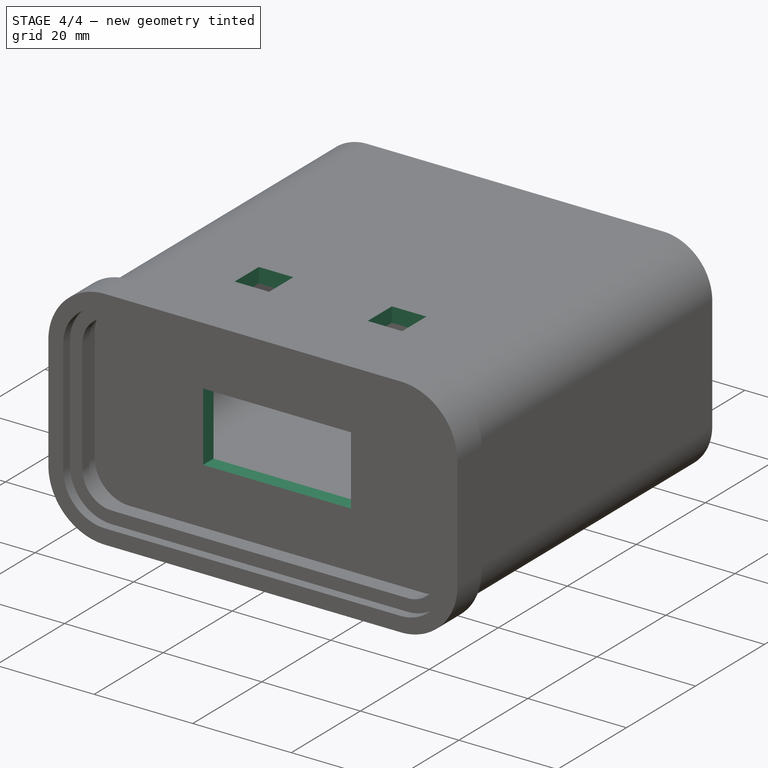
[diagram: stage 4 of 4 — iso view after this stage's code; geometry added in this stage tinted green]
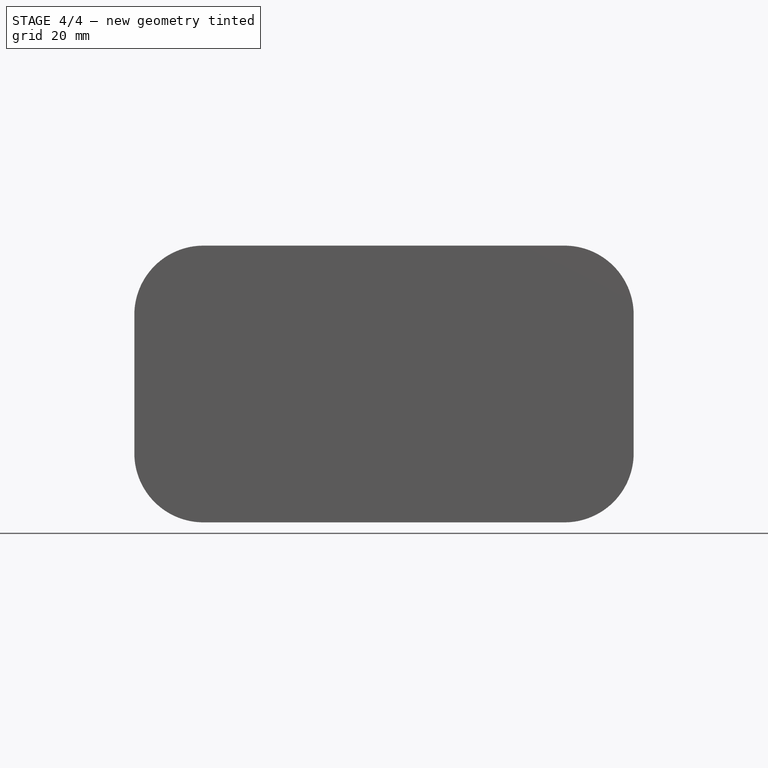
[diagram: stage 4 of 4 — front view after this stage's code; geometry added in this stage tinted green]
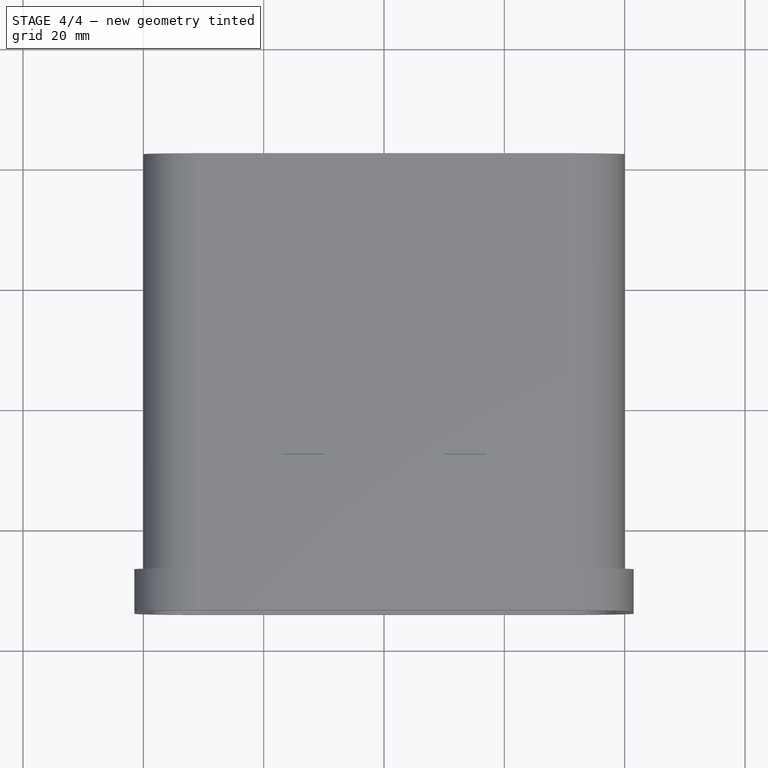
[diagram: stage 4 of 4 — top view after this stage's code; geometry added in this stage tinted green]
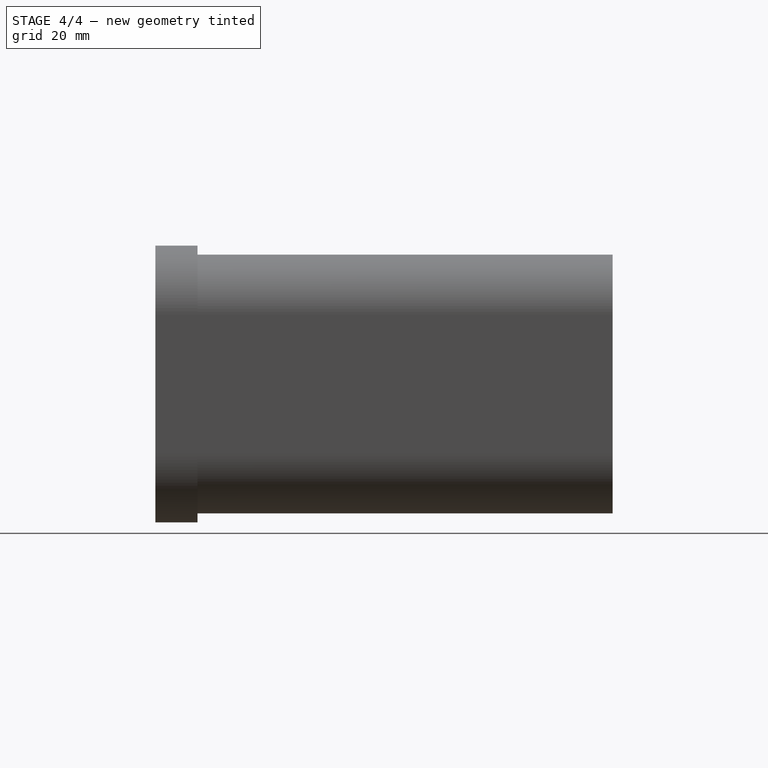
[diagram: stage 4 of 4 — right view after this stage's code; geometry added in this stage tinted green]
FEATURE [Sketcher::SketchObject] Sketch003
  FullyConstrained = true
  MapMode = 5
  Placement = pos=(0,-67,7.12e-14) rot=(1,0,0;1.5708rad)
  Support = -> [Pocket001]
  sketch-geometry (4):
    g0: LineSegment StartX=-15 StartY=7 StartZ=0 EndX=15 EndY=7 EndZ=0
    g1: LineSegment StartX=15 StartY=7 StartZ=0 EndX=15 EndY=-7 EndZ=0
    g2: LineSegment StartX=15 StartY=-7 StartZ=0 EndX=-15 EndY=-7 EndZ=0
    g3: LineSegment StartX=-15 StartY=-7 StartZ=0 EndX=-15 EndY=7 EndZ=0
  constraints (10):
    c: Coincident(g0,g1)
    c: Coincident(g1,g2)
    c: Coincident(g2,g3)
    c: Coincident(g3,g0)
    c: Horizontal(g2)
    c: Vertical(g3)
    c: Symmetric(g0,g0,g-2)
    c: Symmetric(g0,g1,g-1)
    c: DistanceX(g0,g0) = 30
    c: DistanceY(g1,g1) = 14
FEATURE [PartDesign::Pocket] Pocket002  label="DisplayHole"
  BaseFeature = -> Pocket001
  Length = 5
  Length2 = 100
  Placement = pos=(0,0,0) rot=(1,0,0;1.5708rad)
  Profile = -> Sketch003
  Type = 1
FEATURE [Sketcher::SketchObject] Sketch004
  ExternalGeometry = -> [Pocket002]
  FullyConstrained = true
  MapMode = 5
  Placement = pos=(0,1.42e-14,21.5) rot=(0,0,1;3.14159rad)
  Support = -> [Pocket002]
  sketch-geometry (8):
    g0: LineSegment StartX=17 StartY=48 StartZ=0 EndX=10 EndY=48 EndZ=0
    g1: LineSegment StartX=10 StartY=48 StartZ=0 EndX=10 EndY=55 EndZ=0
    g2: LineSegment StartX=10 StartY=55 StartZ=0 EndX=17 EndY=55 EndZ=0
    g3: LineSegment StartX=17 StartY=55 StartZ=0 EndX=17 EndY=48 EndZ=0
    g4: LineSegment StartX=-10 StartY=48 StartZ=0 EndX=-17 EndY=48 EndZ=0
    g5: LineSegment StartX=-17 StartY=48 StartZ=0 EndX=-17 EndY=55 EndZ=0
    g6: LineSegment StartX=-17 StartY=55 StartZ=0 EndX=-10 EndY=55 EndZ=0
    g7: LineSegment StartX=-10 StartY=55 StartZ=0 EndX=-10 EndY=48 EndZ=0
  constraints (23):
    c: Coincident(g0,g1)
    c: Coincident(g1,g2)
    c: Coincident(g2,g3)
    c: Coincident(g3,g0)
    c: Horizontal(g0)
    c: Horizontal(g2)
    c: Vertical(g1)
    c: Vertical(g3)
    c: Coincident(g4,g5)
    c: Coincident(g5,g6)
    c: Coincident(g6,g7)
    c: Coincident(g7,g4)
    c: Horizontal(g4)
    c: Horizontal(g6)
    c: Vertical(g5)
    c: Vertical(g7)
    c: DistanceX(g0,g0) = 7
    c: DistanceX(g4,g4) = 7
    c: DistanceY(g1,g1) = 7
    c: DistanceY(g7,g7) = 7
    c: Symmetric(g0,g4,g-2)
    c: DistanceX(g4,g0) = 20
    c: DistanceY(g5,g-3) = 15
FEATURE [PartDesign::Pocket] Pocket003  label="SensorsHoles"
  BaseFeature = -> Pocket002
  Length = 5
  Length2 = 100
  Placement = pos=(0,0,0) rot=(1,0,0;1.5708rad)
  Profile = -> Sketch004
  Type = 0
FEATURE [Sketcher::SketchObject] Sketch005
  ExternalGeometry = -> [Pocket003]
  FullyConstrained = true
  MapMode = 5
  Placement = pos=(0,1.42e-14,21.5) rot=(0,0,1;3.14159rad)
  Support = -> [Pocket003]
  sketch-geometry (24):
    g0: LineSegment StartX=-15 StartY=65 StartZ=0 EndX=15 EndY=65 EndZ=0
    g1: LineSegment StartX=25 StartY=55 StartZ=0 EndX=25 EndY=15 EndZ=0
    g2: LineSegment StartX=15 StartY=5 StartZ=0 EndX=-15 EndY=5 EndZ=0
    g3: LineSegment StartX=-25 StartY=15 StartZ=0 EndX=-25 EndY=55 EndZ=0
    g4: ArcOfCircle CenterX=15 CenterY=55 CenterZ=0 NormalX=0 NormalY=0 NormalZ=1 AngleXU=0 Radius=10 StartAngle=2e-16 EndAngle=1.5708
    g5: GeomPoint X=25 Y=65 Z=0
    g6: ArcOfCircle CenterX=15 CenterY=15 CenterZ=0 NormalX=0 NormalY=0 NormalZ=1 AngleXU=0 Radius=10 StartAngle=4.71239 EndAngle=6.28319
    g7: GeomPoint X=25 Y=5 Z=0
    g8: ArcOfCircle CenterX=-15 CenterY=15 CenterZ=0 NormalX=0 NormalY=0 NormalZ=1 AngleXU=0 Radius=10 StartAngle=3.14159 EndAngle=4.71239
    g9: GeomPoint X=-25 Y=5 Z=0
    g10: ArcOfCircle CenterX=-15 CenterY=55 CenterZ=0 NormalX=0 NormalY=0 NormalZ=1 AngleXU=0 Radius=10 StartAngle=1.5708 EndAngle=3.14159
    g11: GeomPoint X=-25 Y=65 Z=0
    g12: LineSegment StartX=-15 StartY=62 StartZ=0 EndX=15 EndY=62 EndZ=0
    g13: LineSegment StartX=22 StartY=55 StartZ=0 EndX=22 EndY=15 EndZ=0
    g14: LineSegment StartX=15 StartY=8 StartZ=0 EndX=-15 EndY=8 EndZ=0
    g15: LineSegment StartX=-22 StartY=15 StartZ=0 EndX=-22 EndY=55 EndZ=0
    g16: ArcOfCircle CenterX=15 CenterY=15 CenterZ=0 NormalX=0 NormalY=0 NormalZ=1 AngleXU=0 Radius=7 StartAngle=4.71239 EndAngle=6.28319
    g17: GeomPoint X=22 Y=8 Z=0
    g18: ArcOfCircle CenterX=-15 CenterY=15 CenterZ=0 NormalX=0 NormalY=0 NormalZ=1 AngleXU=0 Radius=7 StartAngle=3.14159 EndAngle=4.71239
    g19: GeomPoint X=-22 Y=8 Z=0
    g20: ArcOfCircle CenterX=-15 CenterY=55 CenterZ=0 NormalX=0 NormalY=0 NormalZ=1 AngleXU=0 Radius=7 StartAngle=1.5708 EndAngle=3.14159
    g21: GeomPoint X=-22 Y=62 Z=0
    g22: ArcOfCircle CenterX=15 CenterY=55 CenterZ=0 NormalX=0 NormalY=0 NormalZ=1 AngleXU=0 Radius=7 StartAngle=0 EndAngle=1.5708
    g23: GeomPoint X=22 Y=62 Z=0
  constraints (55):
    c: Horizontal(g2)
    c: Vertical(g1)
    c: Vertical(g3)
    c: Symmetric(g11,g5,g-2)
    c: DistanceY(g5,g-4) = 5
    c: DistanceY(g-4,g7) = 5
    c: DistanceX(g-3,g11) = 5
    c: PointOnObject(g5,g1)
    c: PointOnObject(g5,g0)
    c: Tangent(g1,g4) = 1.5708
    c: Tangent(g0,g4) = 1.5708
    c: PointOnObject(g7,g1)
    c: PointOnObject(g7,g2)
    c: Tangent(g1,g6) = 1.5708
    c: Tangent(g2,g6) = 1.5708
    c: PointOnObject(g9,g2)
    c: PointOnObject(g9,g3)
    c: Tangent(g2,g8) = 1.5708
    c: Tangent(g3,g8) = 1.5708
    c: PointOnObject(g11,g3)
    c: PointOnObject(g11,g0)
    c: Tangent(g3,g10) = 1.5708
    c: Tangent(g0,g10) = 1.5708
    c: DistanceX(g4,g1) = 10
    c: DistanceX(g3,g10) = 10
    c: DistanceX(g3,g8) = 10
    c: DistanceX(g6,g1) = 10
    c: Horizontal(g12)
    c: Horizontal(g14)
    c: Vertical(g13)
    c: Vertical(g15)
    c: DistanceX(g23,g1) = 3
    c: DistanceX(g3,g21) = 3
    c: DistanceY(g21,g0) = 3
    c: DistanceY(g2,g19) = 3
    c: PointOnObject(g17,g14)
    c: PointOnObject(g17,g13)
    c: Tangent(g14,g16) = 1.5708
    c: Tangent(g13,g16) = 1.5708
    c: PointOnObject(g19,g14)
    c: PointOnObject(g19,g15)
    c: Tangent(g14,g18) = 1.5708
    c: Tangent(g15,g18) = 1.5708
    c: PointOnObject(g21,g15)
    c: PointOnObject(g21,g12)
    c: Tangent(g15,g20) = 1.5708
    c: Tangent(g12,g20) = 1.5708
    c: PointOnObject(g23,g12)
    c: PointOnObject(g23,g13)
    c: Tangent(g12,g22) = 1.5708
    c: Tangent(g13,g22) = 1.5708
    c: DistanceX(g22,g13) = 7
    c: DistanceX(g15,g20) = 7
    c: DistanceX(g16,g13) = 7
    c: DistanceX(g15,g18) = 7
FEATURE [PartDesign::Pocket] Pocket004  label="TopRailRecess"
  BaseFeature = -> Pocket003
  Length = 2
  Length2 = 100
  Placement = pos=(0,0,0) rot=(1,0,0;1.5708rad)
  Profile = -> Sketch005
  Type = 0
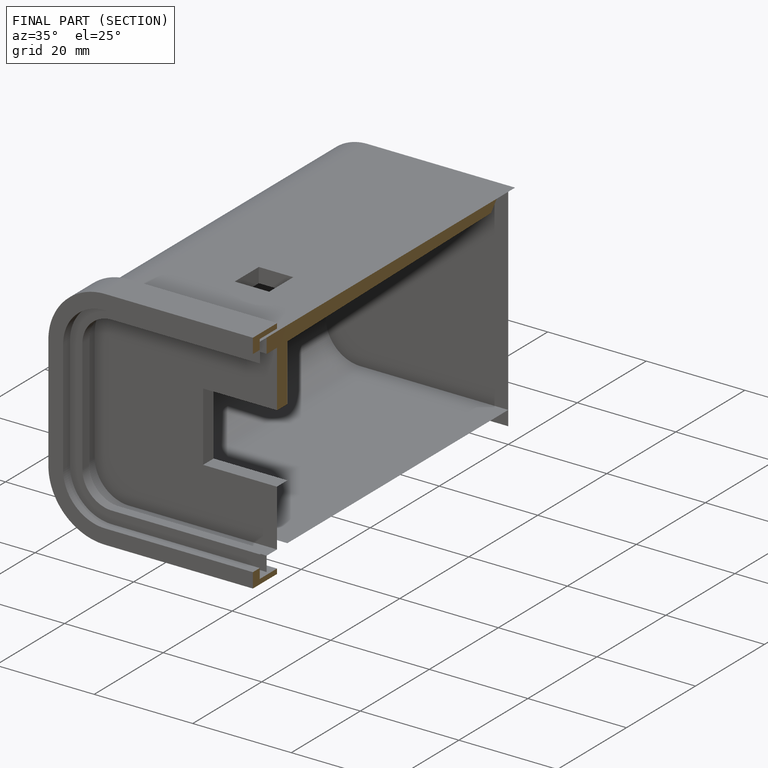
[diagram: finished part — half-section view (interior)]
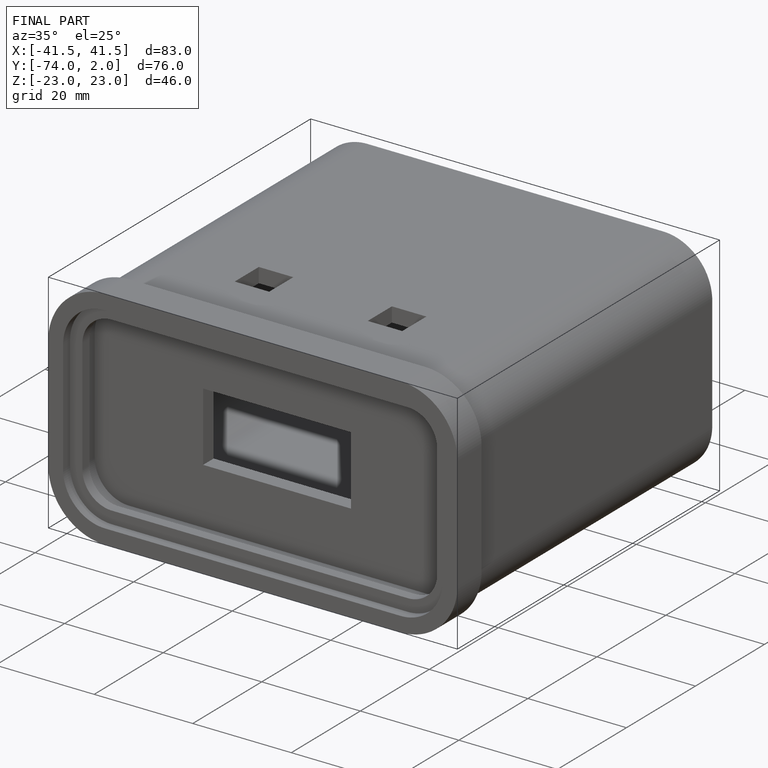
[diagram: finished part — iso view with bounding-box wireframe]
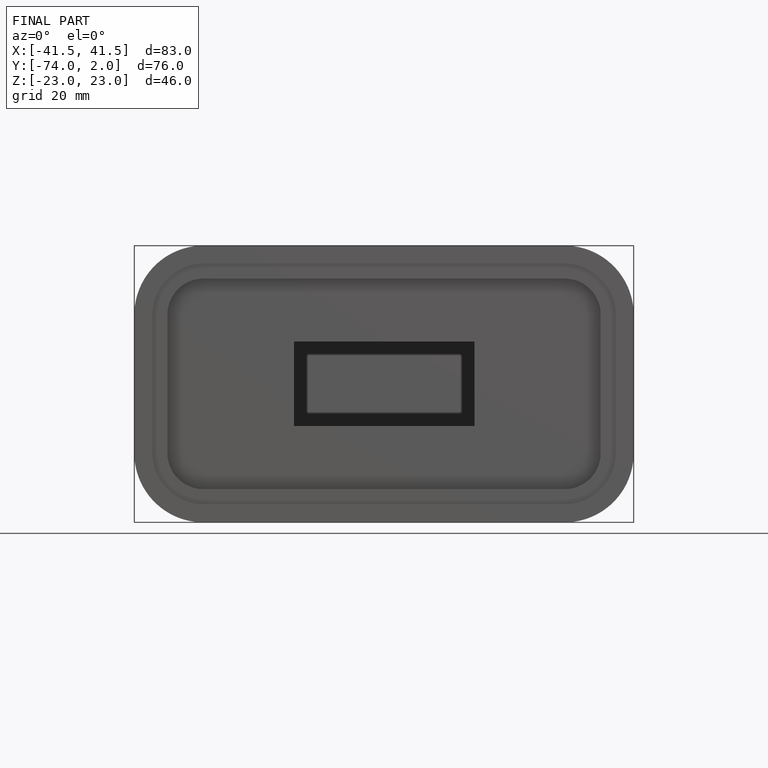
[diagram: finished part — front view with bounding-box wireframe]
